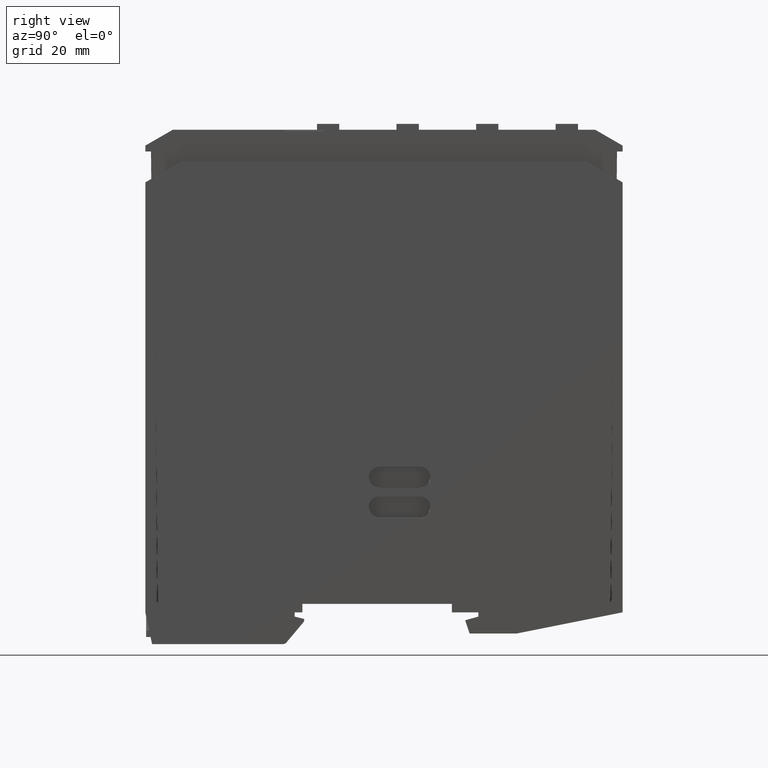
[diagram: clean part render]
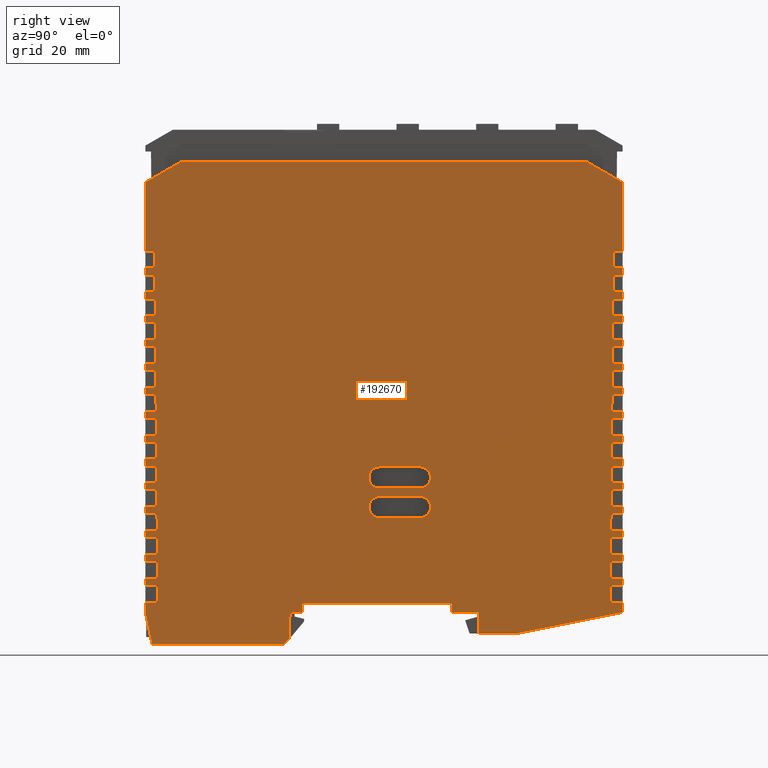
[diagram: same view with one face highlighted and labeled with its STEP entity id]
A machine part, right view. The second image highlights one B-rep face of the part: STEP entity #192670.
In plain terms, the highlighted planar face has unit normal (1, -0, 0).
Its self-contained STEP definition (entity closure, byte-faithful):
#200=CARTESIAN_POINT('',(35.9999999955137,24.6999999540141,
-3.99025656807565));
#210=VERTEX_POINT('',#200);
#240=CARTESIAN_POINT('',(35.9999999902508,-0.30000037049499,
-8.99025663271298));
#250=DIRECTION('',(2.06424506027228E-10,0.980580675692915,
0.196116135128209));
#260=VECTOR('',#250,1.);
#270=LINE('',#240,#260);
#280=CARTESIAN_POINT('',(35.9999999997239,44.6999999540549,
0.00974343172092063));
#290=VERTEX_POINT('',#280);
#300=EDGE_CURVE('',#210,#290,#270,.T.);
#1250=CARTESIAN_POINT('',(35.999999995587,17.4999999540141,
-3.99025656800227));
#1260=VERTEX_POINT('',#1250);
#1290=CARTESIAN_POINT('',(35.9999999957685,-0.300000370444029,
-3.99025656782084));
#1300=DIRECTION('',(-1.01922142602084E-11,1.,-1.0192214248961E-11));
#1310=VECTOR('',#1300,1.);
#1320=LINE('',#1290,#1310);
#1330=EDGE_CURVE('',#1260,#210,#1320,.T.);
#8790=CARTESIAN_POINT('',(36.0000001183176,-0.300000369312157,
107.062302590989));
#8800=DIRECTION('',(5.60588544278916E-10,-0.866025403779342,
0.500000000008828));
#8810=VECTOR('',#8800,1.);
#8820=LINE('',#8790,#8810);
#8830=CARTESIAN_POINT('',(36.0000000891886,44.6999999548812,
81.0815402896713));
#8840=VERTEX_POINT('',#8830);
#8850=CARTESIAN_POINT('',(36.0000000935928,37.8961530466489,
85.0097431337567));
#8860=VERTEX_POINT('',#8850);
#8870=EDGE_CURVE('',#8840,#8860,#8820,.T.);
#13990=CARTESIAN_POINT('',(36.0000000901059,-45.3000000451188,
81.0815406652398));
#14000=VERTEX_POINT('',#13990);
#14030=CARTESIAN_POINT('',(36.0000000483134,-45.3000000455048,
43.209743283621));
#14040=DIRECTION('',(-1.10352365561752E-9,-1.01922142602084E-11,-1.));
#14050=VECTOR('',#14040,1.);
#14060=LINE('',#14030,#14050);
#14070=CARTESIAN_POINT('',(36.0000000757839,-45.3000000452511,
68.1031815370123));
#14080=VERTEX_POINT('',#14070);
#14090=EDGE_CURVE('',#14000,#14080,#14060,.T.);
#14310=CARTESIAN_POINT('',(36.0000000722656,-45.3000000452836,
64.9149332609804));
#14320=VERTEX_POINT('',#14310);
#14350=CARTESIAN_POINT('',(36.0000000708203,-45.3000000452969,
63.6052396379369));
#14360=VERTEX_POINT('',#14350);
#14370=EDGE_CURVE('',#14320,#14360,#14060,.T.);
#14590=CARTESIAN_POINT('',(36.0000000672975,-45.3000000453295,
60.4128751600558));
#14600=VERTEX_POINT('',#14590);
#14630=CARTESIAN_POINT('',(36.0000000658568,-45.3000000453428,
59.1072977388614));
#14640=VERTEX_POINT('',#14630);
#14650=EDGE_CURVE('',#14600,#14640,#14060,.T.);
#14870=CARTESIAN_POINT('',(36.0000000623294,-45.3000000453753,
55.9108170591313));
#14880=VERTEX_POINT('',#14870);
#14910=CARTESIAN_POINT('',(36.0000000608932,-45.3000000453886,
54.609355839786));
#14920=VERTEX_POINT('',#14910);
#14930=EDGE_CURVE('',#14880,#14920,#14060,.T.);
#15150=CARTESIAN_POINT('',(36.0000000573612,-45.3000000454212,
51.4087589582068));
#15160=VERTEX_POINT('',#15150);
#15190=CARTESIAN_POINT('',(36.0000000559296,-45.3000000454345,
50.1114139407105));
#15200=VERTEX_POINT('',#15190);
#15210=EDGE_CURVE('',#15160,#15200,#14060,.T.);
#15430=CARTESIAN_POINT('',(36.0000000523931,-45.3000000454671,
46.9067008572822));
#15440=VERTEX_POINT('',#15430);
#15470=CARTESIAN_POINT('',(36.000000050966,-45.3000000454803,
45.6134720416351));
#15480=VERTEX_POINT('',#15470);
#15490=EDGE_CURVE('',#15440,#15480,#14060,.T.);
#15710=CARTESIAN_POINT('',(36.000000047425,-45.300000045513,
42.4046427563577));
#15720=VERTEX_POINT('',#15710);
#15750=CARTESIAN_POINT('',(36.0000000460024,-45.3000000455261,
41.1155301425596));
#15760=VERTEX_POINT('',#15750);
#15770=EDGE_CURVE('',#15720,#15760,#14060,.T.);
#15990=CARTESIAN_POINT('',(36.0000000424569,-45.3000000455589,
37.9025846554331));
#16000=VERTEX_POINT('',#15990);
#16030=CARTESIAN_POINT('',(36.0000000410388,-45.300000045572,
36.6175882434842));
#16040=VERTEX_POINT('',#16030);
#16050=EDGE_CURVE('',#16000,#16040,#14060,.T.);
#16270=CARTESIAN_POINT('',(36.0000000374892,-45.3000000456048,
33.4009236606617));
#16280=VERTEX_POINT('',#16270);
#16310=CARTESIAN_POINT('',(36.0000000360752,-45.3000000456178,
32.1196463444087));
#16320=VERTEX_POINT('',#16310);
#16330=EDGE_CURVE('',#16280,#16320,#14060,.T.);
#16550=CARTESIAN_POINT('',(36.0000000325206,-45.3000000456507,
28.898468453584));
#16560=VERTEX_POINT('',#16550);
#16590=CARTESIAN_POINT('',(36.0000000311117,-45.3000000456637,
27.6217044453332));
#16600=VERTEX_POINT('',#16590);
#16610=EDGE_CURVE('',#16560,#16600,#14060,.T.);
#16830=CARTESIAN_POINT('',(36.0000000275525,-45.3000000456965,
24.3964103526595));
#16840=VERTEX_POINT('',#16830);
#16870=CARTESIAN_POINT('',(36.0000000261481,-45.3000000457095,
23.1237625462578));
#16880=VERTEX_POINT('',#16870);
#16890=EDGE_CURVE('',#16840,#16880,#14060,.T.);
#17110=CARTESIAN_POINT('',(36.0000000225843,-45.3000000457424,
19.8943522517349));
#17120=VERTEX_POINT('',#17110);
#17150=CARTESIAN_POINT('',(36.0000000211845,-45.3000000457554,
18.6258206471824));
#17160=VERTEX_POINT('',#17150);
#17170=EDGE_CURVE('',#17120,#17160,#14060,.T.);
#17390=CARTESIAN_POINT('',(36.0000000176162,-45.3000000457883,
15.3922941508104));
#17400=VERTEX_POINT('',#17390);
#17430=CARTESIAN_POINT('',(36.0000000162209,-45.3000000458012,
14.1278787481069));
#17440=VERTEX_POINT('',#17430);
#17450=EDGE_CURVE('',#17400,#17440,#14060,.T.);
#17670=CARTESIAN_POINT('',(36.0000000126481,-45.3000000458342,
10.8902360498858));
#17680=VERTEX_POINT('',#17670);
#17710=CARTESIAN_POINT('',(36.0000000112573,-45.3000000458471,
9.62993684903147));
#17720=VERTEX_POINT('',#17710);
#17730=EDGE_CURVE('',#17680,#17720,#14060,.T.);
#17950=CARTESIAN_POINT('',(36.00000000768,-45.3000000458801,
6.38817794896129));
#17960=VERTEX_POINT('',#17950);
#17990=CARTESIAN_POINT('',(36.0000000062937,-45.3000000458929,
5.131994949956));
#18000=VERTEX_POINT('',#17990);
#18010=EDGE_CURVE('',#17960,#18000,#14060,.T.);
#18230=CARTESIAN_POINT('',(36.0000000027118,-45.300000045926,
1.88611984803673));
#18240=VERTEX_POINT('',#18230);
#18270=CARTESIAN_POINT('',(36.0000000006412,-45.3000000459451,
0.00974343263779787));
#18280=VERTEX_POINT('',#18270);
#18290=EDGE_CURVE('',#18240,#18280,#14060,.T.);
#28700=CARTESIAN_POINT('',(36.0000000473961,44.6999999544952,
43.2097432827037));
#28710=DIRECTION('',(-1.10352365561752E-9,-1.01922142602084E-11,-1.));
#28720=VECTOR('',#28710,1.);
#28730=LINE('',#28700,#28720);
#29240=CARTESIAN_POINT('',(36.0000000943714,-38.4961537857228,
85.0097431345345));
#29250=VERTEX_POINT('',#29240);
#29280=CARTESIAN_POINT('',(36.0000001183176,-0.300000369312157,
107.062302590988));
#29290=DIRECTION('',(5.42935111338604E-10,0.866025403789536,
0.499999999991172));
#29300=VECTOR('',#29290,1.);
#29310=LINE('',#29280,#29300);
#29320=EDGE_CURVE('',#14000,#29250,#29310,.T.);
#29520=CARTESIAN_POINT('',(36.0000000939821,-0.300000369536922,
85.0097431341456));
#29530=DIRECTION('',(-1.01922142601962E-11,1.,-1.01812328160025E-11));
#29540=VECTOR('',#29530,1.);
#29550=LINE('',#29520,#29540);
#29560=EDGE_CURVE('',#29250,#8860,#29550,.T.);
#31550=CARTESIAN_POINT('',(36.0000001051277,-0.30000004497582,
95.1097434321792));
#31560=DIRECTION('',(1.,1.0192214248961E-11,-1.10352365561762E-9));
#31570=DIRECTION('',(1.01922142602084E-11,-1.,1.0192214248961E-11));
#31580=AXIS2_PLACEMENT_3D('',#31550,#31560,#31570);
#31590=PLANE('',#31580);
#36440=CARTESIAN_POINT('',(36.0000000017945,44.699999954074,
1.88611984711936));
#36450=VERTEX_POINT('',#36440);
#36460=EDGE_CURVE('',#36450,#290,#28730,.T.);
#36680=CARTESIAN_POINT('',(36.0000000053764,44.6999999541071,
5.13199494903863));
#36690=VERTEX_POINT('',#36680);
#36720=CARTESIAN_POINT('',(36.0000000067627,44.6999999541199,
6.38817794804392));
#36730=VERTEX_POINT('',#36720);
#36740=EDGE_CURVE('',#36730,#36690,#28730,.T.);
#36960=CARTESIAN_POINT('',(36.00000001034,44.699999954153,
9.6299368481141));
#36970=VERTEX_POINT('',#36960);
#37000=CARTESIAN_POINT('',(36.0000000117308,44.6999999541658,
10.8902360489685));
#37010=VERTEX_POINT('',#37000);
#37020=EDGE_CURVE('',#37010,#36970,#28730,.T.);
#37240=CARTESIAN_POINT('',(36.0000000153036,44.6999999541988,
14.1278787471895));
#37250=VERTEX_POINT('',#37240);
#37280=CARTESIAN_POINT('',(36.0000000166989,44.6999999542117,
15.392294149893));
#37290=VERTEX_POINT('',#37280);
#37300=EDGE_CURVE('',#37290,#37250,#28730,.T.);
#37520=CARTESIAN_POINT('',(36.0000000202672,44.6999999542446,
18.625820646265));
#37530=VERTEX_POINT('',#37520);
#37560=CARTESIAN_POINT('',(36.000000021667,44.6999999542576,
19.8943522508175));
#37570=VERTEX_POINT('',#37560);
#37580=EDGE_CURVE('',#37570,#37530,#28730,.T.);
#37800=CARTESIAN_POINT('',(36.0000000252308,44.6999999542905,
23.1237625453404));
#37810=VERTEX_POINT('',#37800);
#37840=CARTESIAN_POINT('',(36.0000000266352,44.6999999543035,
24.3964103517421));
#37850=VERTEX_POINT('',#37840);
#37860=EDGE_CURVE('',#37850,#37810,#28730,.T.);
#38080=CARTESIAN_POINT('',(36.0000000301944,44.6999999543363,
27.6217044444159));
#38090=VERTEX_POINT('',#38080);
#38120=CARTESIAN_POINT('',(36.0000000316033,44.6999999543493,
28.8984684526666));
#38130=VERTEX_POINT('',#38120);
#38140=EDGE_CURVE('',#38130,#38090,#28730,.T.);
#38360=CARTESIAN_POINT('',(36.0000000351579,44.6999999543822,
32.1196463434913));
#38370=VERTEX_POINT('',#38360);
#38400=CARTESIAN_POINT('',(36.0000000365719,44.6999999543952,
33.4009236597443));
#38410=VERTEX_POINT('',#38400);
#38420=EDGE_CURVE('',#38410,#38370,#28730,.T.);
#38640=CARTESIAN_POINT('',(36.0000000401215,44.699999954428,
36.6175882425668));
#38650=VERTEX_POINT('',#38640);
#38680=CARTESIAN_POINT('',(36.0000000415396,44.6999999544411,
37.9025846545157));
#38690=VERTEX_POINT('',#38680);
#38700=EDGE_CURVE('',#38690,#38650,#28730,.T.);
#38920=CARTESIAN_POINT('',(36.0000000450851,44.6999999544739,
41.1155301416423));
#38930=VERTEX_POINT('',#38920);
#38960=CARTESIAN_POINT('',(36.0000000465077,44.699999954487,
42.4046427554403));
#38970=VERTEX_POINT('',#38960);
#38980=EDGE_CURVE('',#38970,#38930,#28730,.T.);
#39200=CARTESIAN_POINT('',(36.0000000500487,44.6999999545197,
45.6134720407177));
#39210=VERTEX_POINT('',#39200);
#39240=CARTESIAN_POINT('',(36.0000000514758,44.6999999545329,
46.9067008563648));
#39250=VERTEX_POINT('',#39240);
#39260=EDGE_CURVE('',#39250,#39210,#28730,.T.);
#39480=CARTESIAN_POINT('',(36.0000000550123,44.6999999545655,
50.1114139397932));
#39490=VERTEX_POINT('',#39480);
#39520=CARTESIAN_POINT('',(36.0000000564439,44.6999999545788,
51.4087589572894));
#39530=VERTEX_POINT('',#39520);
#39540=EDGE_CURVE('',#39530,#39490,#28730,.T.);
#39760=CARTESIAN_POINT('',(36.0000000599759,44.6999999546114,
54.6093558388686));
#39770=VERTEX_POINT('',#39760);
#39800=CARTESIAN_POINT('',(36.0000000614121,44.6999999546247,
55.9108170582139));
#39810=VERTEX_POINT('',#39800);
#39820=EDGE_CURVE('',#39810,#39770,#28730,.T.);
#40040=CARTESIAN_POINT('',(36.0000000649395,44.6999999546572,
59.1072977379441));
#40050=VERTEX_POINT('',#40040);
#40080=CARTESIAN_POINT('',(36.0000000663802,44.6999999546705,
60.4128751591385));
#40090=VERTEX_POINT('',#40080);
#40100=EDGE_CURVE('',#40090,#40050,#28730,.T.);
#40320=CARTESIAN_POINT('',(36.000000069903,44.6999999547031,
63.6052396370195));
#40330=VERTEX_POINT('',#40320);
#40360=CARTESIAN_POINT('',(36.0000000713483,44.6999999547164,
64.914933260063));
#40370=VERTEX_POINT('',#40360);
#40380=EDGE_CURVE('',#40370,#40330,#28730,.T.);
#40600=CARTESIAN_POINT('',(36.0000000748666,44.6999999547489,
68.103181536095));
#40610=VERTEX_POINT('',#40600);
#40640=EDGE_CURVE('',#8840,#40610,#28730,.T.);
#42390=CARTESIAN_POINT('',(36.0000000198677,-1.14565940197907,
17.8403649190574));
#42400=VERTEX_POINT('',#42390);
#42430=CARTESIAN_POINT('',(36.0000000242821,-1.1456594019383,
21.8406695519431));
#42440=CARTESIAN_POINT('',(36.0000000242934,-2.24948934323162,
21.8406695519544));
#42450=CARTESIAN_POINT('',(36.0000000233135,-3.14565940194744,
20.9444312425391));
#42460=CARTESIAN_POINT('',(36.0000000208771,-3.14565940196994,
18.7366032285022));
#42470=CARTESIAN_POINT('',(36.0000000198789,-2.24948934327239,
17.8403649190686));
#42480=CARTESIAN_POINT('',(36.0000000198677,-1.14565940197907,
17.8403649190574));
#42490=B_SPLINE_CURVE_WITH_KNOTS('',3,(#42430,#42440,#42450,#42460,
#42470,#42480),.UNSPECIFIED.,.F.,.F.,(4,2,4),(0.,1.,2.),.UNSPECIFIED.);
#42500=CARTESIAN_POINT('',(36.0000000242821,-1.1456594019383,
21.8406695519431));
#42510=VERTEX_POINT('',#42500);
#42520=EDGE_CURVE('',#42510,#42400,#42490,.T.);
#42770=CARTESIAN_POINT('',(36.0000000242735,-0.300000370180754,
21.8406695519345));
#42780=DIRECTION('',(-1.01922142602083E-11,1.,-1.01921587335821E-11));
#42790=VECTOR('',#42780,1.);
#42800=LINE('',#42770,#42790);
#42810=CARTESIAN_POINT('',(36.0000000242045,6.47434059806169,
21.8406695518655));
#42820=VERTEX_POINT('',#42810);
#42830=EDGE_CURVE('',#42510,#42820,#42800,.T.);
#43130=CARTESIAN_POINT('',(36.00000001979,6.47434059802092,
17.8403649189797));
#43140=CARTESIAN_POINT('',(36.0000000197788,7.57817053931424,
17.8403649189685));
#43150=CARTESIAN_POINT('',(36.0000000207587,8.47434059803006,
18.7366032283838));
#43160=CARTESIAN_POINT('',(36.0000000231951,8.47434059805256,
20.9444312424206));
#43170=CARTESIAN_POINT('',(36.0000000241932,7.57817053935501,
21.8406695518542));
#43180=CARTESIAN_POINT('',(36.0000000242045,6.47434059806169,
21.8406695518655));
#43190=B_SPLINE_CURVE_WITH_KNOTS('',3,(#43130,#43140,#43150,#43160,
#43170,#43180),.UNSPECIFIED.,.F.,.F.,(4,2,4),(0.,1.,2.),.UNSPECIFIED.);
#43200=CARTESIAN_POINT('',(36.00000001979,6.47434059802092,
17.8403649189797));
#43210=VERTEX_POINT('',#43200);
#43220=EDGE_CURVE('',#43210,#42820,#43190,.T.);
#43470=CARTESIAN_POINT('',(36.0000000198591,-0.300000370221526,
17.8403649190488));
#43480=DIRECTION('',(1.01922142602083E-11,-1.,1.01921587335821E-11));
#43490=VECTOR('',#43480,1.);
#43500=LINE('',#43470,#43490);
#43510=EDGE_CURVE('',#43210,#42400,#43500,.T.);
#44270=CARTESIAN_POINT('',(36.0000000304623,-1.14565940188122,
27.4410960379832));
#44280=VERTEX_POINT('',#44270);
#44310=CARTESIAN_POINT('',(36.0000000304537,-0.300000370123674,
27.4410960379746));
#44320=DIRECTION('',(-1.01922142602085E-11,1.,-1.01923167044739E-11));
#44330=VECTOR('',#44320,1.);
#44340=LINE('',#44310,#44330);
#44350=CARTESIAN_POINT('',(36.0000000303847,6.47434059811878,
27.4410960379055));
#44360=VERTEX_POINT('',#44350);
#44370=EDGE_CURVE('',#44280,#44360,#44340,.T.);
#44700=CARTESIAN_POINT('',(36.0000000260479,-1.14565940192199,
23.4407914050974));
#44710=VERTEX_POINT('',#44700);
#44740=CARTESIAN_POINT('',(36.0000000304623,-1.14565940188122,
27.4410960379832));
#44750=CARTESIAN_POINT('',(36.0000000304736,-2.24948934317454,
27.4410960379945));
#44760=CARTESIAN_POINT('',(36.0000000294937,-3.14565940189036,
26.5448577285791));
#44770=CARTESIAN_POINT('',(36.0000000270573,-3.14565940191286,
24.3370297145423));
#44780=CARTESIAN_POINT('',(36.0000000260591,-2.24948934321531,
23.4407914051087));
#44790=CARTESIAN_POINT('',(36.0000000260479,-1.14565940192199,
23.4407914050974));
#44800=B_SPLINE_CURVE_WITH_KNOTS('',3,(#44740,#44750,#44760,#44770,
#44780,#44790),.UNSPECIFIED.,.F.,.F.,(4,2,4),(0.,1.,2.),.UNSPECIFIED.);
#44810=EDGE_CURVE('',#44280,#44710,#44800,.T.);
#45040=CARTESIAN_POINT('',(36.0000000259702,6.474340598078,
23.4407914050198));
#45050=VERTEX_POINT('',#45040);
#45080=CARTESIAN_POINT('',(36.0000000260393,-0.300000370164446,
23.4407914050888));
#45090=DIRECTION('',(1.01922142602083E-11,-1.,1.01921587335821E-11));
#45100=VECTOR('',#45090,1.);
#45110=LINE('',#45080,#45100);
#45120=EDGE_CURVE('',#45050,#44710,#45110,.T.);
#45370=CARTESIAN_POINT('',(36.0000000259702,6.474340598078,
23.4407914050198));
#45380=CARTESIAN_POINT('',(36.000000025959,7.57817053937132,
23.4407914050085));
#45390=CARTESIAN_POINT('',(36.0000000269389,8.47434059808714,
24.3370297144239));
#45400=CARTESIAN_POINT('',(36.0000000293753,8.47434059810964,
26.5448577284607));
#45410=CARTESIAN_POINT('',(36.0000000303734,7.57817053941209,
27.4410960378943));
#45420=CARTESIAN_POINT('',(36.0000000303847,6.47434059811878,
27.4410960379055));
#45430=B_SPLINE_CURVE_WITH_KNOTS('',3,(#45370,#45380,#45390,#45400,
#45410,#45420),.UNSPECIFIED.,.F.,.F.,(4,2,4),(0.,1.,2.),.UNSPECIFIED.);
#45440=EDGE_CURVE('',#45050,#44360,#45430,.T.);
#45760=CARTESIAN_POINT('',(36.0000000748848,42.9179101353211,
68.1031815361131));
#45770=VERTEX_POINT('',#45760);
#45800=CARTESIAN_POINT('',(36.0000000753253,-0.300000369709237,
68.1031815365536));
#45810=DIRECTION('',(-1.01922142602084E-11,1.,-1.0192214248961E-11));
#45820=VECTOR('',#45810,1.);
#45830=LINE('',#45800,#45820);
#45840=EDGE_CURVE('',#45770,#40610,#45830,.T.);
#46140=CARTESIAN_POINT('',(36.0000000713668,42.8900867140996,
64.9149332600815));
#46150=VERTEX_POINT('',#46140);
#46180=CARTESIAN_POINT('',(36.0000000474165,42.7006683905726,
43.2097432827241));
#46190=DIRECTION('',(-1.10339269409855E-9,-0.00872653550856558,
-0.999961923064082));
#46200=VECTOR('',#46190,1.);
#46210=LINE('',#46180,#46200);
#46220=EDGE_CURVE('',#45770,#46150,#46210,.T.);
#46390=CARTESIAN_POINT('',(36.000000071807,-0.300000369741732,
64.9149332605217));
#46400=DIRECTION('',(1.01922142602084E-11,-1.,1.0192214248961E-11));
#46410=VECTOR('',#46400,1.);
#46420=LINE('',#46390,#46410);
#46430=EDGE_CURVE('',#40370,#46150,#46420,.T.);
#47000=CARTESIAN_POINT('',(36.0000000699216,42.8786571909915,
63.6052396370381));
#47010=VERTEX_POINT('',#47000);
#47040=CARTESIAN_POINT('',(36.0000000703617,-0.300000369755081,
63.6052396374782));
#47050=DIRECTION('',(-1.01922142602084E-11,1.,-1.0192214248961E-11));
#47060=VECTOR('',#47050,1.);
#47070=LINE('',#47040,#47060);
#47080=EDGE_CURVE('',#47010,#40330,#47070,.T.);
#47330=CARTESIAN_POINT('',(36.000000066399,42.8507978482206,
60.4128751591573));
#47340=VERTEX_POINT('',#47330);
#47370=EDGE_CURVE('',#47010,#47340,#46210,.T.);
#47540=CARTESIAN_POINT('',(36.0000000668388,-0.300000369787618,
60.4128751595971));
#47550=DIRECTION('',(1.01922142602084E-11,-1.,1.0192214248961E-11));
#47560=VECTOR('',#47550,1.);
#47570=LINE('',#47540,#47560);
#47580=EDGE_CURVE('',#40090,#47340,#47570,.T.);
#48150=CARTESIAN_POINT('',(36.0000000649584,42.8394042466619,
59.107297737963));
#48160=VERTEX_POINT('',#48150);
#48190=CARTESIAN_POINT('',(36.0000000653981,-0.300000369800925,
59.1072977384027));
#48200=DIRECTION('',(-1.01922142602084E-11,1.,-1.0192214248961E-11));
#48210=VECTOR('',#48200,1.);
#48220=LINE('',#48190,#48210);
#48230=EDGE_CURVE('',#48160,#40050,#48220,.T.);
#48480=CARTESIAN_POINT('',(36.0000000614313,42.8115089823416,
55.9108170582332));
#48490=VERTEX_POINT('',#48480);
#48520=EDGE_CURVE('',#48160,#48490,#46210,.T.);
#48690=CARTESIAN_POINT('',(36.0000000618707,-0.300000369833504,
55.9108170586726));
#48700=DIRECTION('',(1.01922142602084E-11,-1.,1.0192214248961E-11));
#48710=VECTOR('',#48700,1.);
#48720=LINE('',#48690,#48710);
#48730=EDGE_CURVE('',#39810,#48490,#48720,.T.);
#49300=CARTESIAN_POINT('',(36.0000000599952,42.8001513023323,
54.609355838888));
#49310=VERTEX_POINT('',#49300);
#49340=CARTESIAN_POINT('',(36.0000000604345,-0.300000369846769,
54.6093558393273));
#49350=DIRECTION('',(-1.01922142602084E-11,1.,-1.0192214248961E-11));
#49360=VECTOR('',#49350,1.);
#49370=LINE('',#49340,#49360);
#49380=EDGE_CURVE('',#49310,#39770,#49370,.T.);
#49630=CARTESIAN_POINT('',(36.0000000564636,42.7722201164627,
51.408758957309));
#49640=VERTEX_POINT('',#49630);
#49670=EDGE_CURVE('',#49310,#49640,#46210,.T.);
#49840=CARTESIAN_POINT('',(36.0000000569026,-0.30000036987939,
51.408758957748));
#49850=DIRECTION('',(1.01922142602084E-11,-1.,1.0192214248961E-11));
#49860=VECTOR('',#49850,1.);
#49870=LINE('',#49840,#49860);
#49880=EDGE_CURVE('',#39530,#49640,#49870,.T.);
#50450=CARTESIAN_POINT('',(36.0000000550321,42.7608983580027,
50.1114139398129));
#50460=VERTEX_POINT('',#50450);
#50490=CARTESIAN_POINT('',(36.0000000554709,-0.300000369892613,
50.1114139402518));
#50500=DIRECTION('',(-1.01922142602084E-11,1.,-1.0192214248961E-11));
#50510=VECTOR('',#50500,1.);
#50520=LINE('',#50490,#50510);
#50530=EDGE_CURVE('',#50460,#39490,#50520,.T.);
#50780=CARTESIAN_POINT('',(36.0000000514959,42.7329312505837,
46.9067008563849));
#50790=VERTEX_POINT('',#50780);
#50820=EDGE_CURVE('',#50460,#50790,#46210,.T.);
#50990=CARTESIAN_POINT('',(36.0000000519345,-0.300000369925276,
46.9067008568235));
#51000=DIRECTION('',(1.01922142602084E-11,-1.,1.0192214248961E-11));
#51010=VECTOR('',#51000,1.);
#51020=LINE('',#50990,#51010);
#51030=EDGE_CURVE('',#39250,#50790,#51020,.T.);
#51600=CARTESIAN_POINT('',(36.0000000500689,42.7216454136732,
45.6134720407379));
#51610=VERTEX_POINT('',#51600);
#51640=CARTESIAN_POINT('',(36.0000000505074,-0.300000369938457,
45.6134720411764));
#51650=DIRECTION('',(-1.01922142602084E-11,1.,-1.0192214248961E-11));
#51660=VECTOR('',#51650,1.);
#51670=LINE('',#51640,#51660);
#51680=EDGE_CURVE('',#51610,#39210,#51670,.T.);
#51930=CARTESIAN_POINT('',(36.0000000465281,42.6936423847047,
42.4046427554607));
#51940=VERTEX_POINT('',#51930);
#51970=EDGE_CURVE('',#51610,#51940,#46210,.T.);
#52140=CARTESIAN_POINT('',(36.0000000469663,-0.300000369971162,
42.4046427558989));
#52150=DIRECTION('',(1.01922142602084E-11,-1.,1.0192214248961E-11));
#52160=VECTOR('',#52150,1.);
#52170=LINE('',#52140,#52160);
#52180=EDGE_CURVE('',#38970,#51940,#52170,.T.);
#52750=CARTESIAN_POINT('',(36.0000000451057,42.6823924693436,
41.1155301416628));
#52760=VERTEX_POINT('',#52750);
#52790=CARTESIAN_POINT('',(36.0000000455438,-0.300000369984301,
41.1155301421009));
#52800=DIRECTION('',(-1.01922142602084E-11,1.,-1.0192214248961E-11));
#52810=VECTOR('',#52800,1.);
#52820=LINE('',#52790,#52810);
#52830=EDGE_CURVE('',#52760,#38930,#52820,.T.);
#53080=CARTESIAN_POINT('',(36.0000000415604,42.6543535188258,
37.9025846545366));
#53090=VERTEX_POINT('',#53080);
#53120=EDGE_CURVE('',#52760,#53090,#46210,.T.);
#53290=CARTESIAN_POINT('',(36.0000000419982,-0.300000370017048,
37.9025846549744));
#53300=DIRECTION('',(1.01922142602084E-11,-1.,1.0192214248961E-11));
#53310=VECTOR('',#53300,1.);
#53320=LINE('',#53290,#53310);
#53330=EDGE_CURVE('',#38690,#53090,#53320,.T.);
#53900=CARTESIAN_POINT('',(36.0000000401425,42.643139525014,
36.6175882425878));
#53910=VERTEX_POINT('',#53900);
#53940=CARTESIAN_POINT('',(36.0000000405802,-0.300000370030145,
36.6175882430255));
#53950=DIRECTION('',(-1.01922142602084E-11,1.,-1.0192214248961E-11));
#53960=VECTOR('',#53950,1.);
#53970=LINE('',#53940,#53960);
#53980=EDGE_CURVE('',#53910,#38650,#53970,.T.);
#54230=CARTESIAN_POINT('',(36.0000000365931,42.6150681184397,
33.4009236597656));
#54240=VERTEX_POINT('',#54230);
#54270=EDGE_CURVE('',#53910,#54240,#46210,.T.);
#54440=CARTESIAN_POINT('',(36.0000000370305,-0.30000037006293,
33.400923660203));
#54450=DIRECTION('',(1.01922142602084E-11,-1.,1.0192214248961E-11));
#54460=VECTOR('',#54450,1.);
#54470=LINE('',#54440,#54460);
#54480=EDGE_CURVE('',#38410,#54240,#54470,.T.);
#55050=CARTESIAN_POINT('',(36.0000000351793,42.6038865806844,
32.1196463435127));
#55060=VERTEX_POINT('',#55050);
#55090=CARTESIAN_POINT('',(36.0000000356166,-0.300000370075989,
32.11964634395));
#55100=DIRECTION('',(-1.01922142602084E-11,1.,-1.0192214248961E-11));
#55110=VECTOR('',#55100,1.);
#55120=LINE('',#55090,#55110);
#55130=EDGE_CURVE('',#55060,#38370,#55120,.T.);
#55380=CARTESIAN_POINT('',(36.000000031625,42.5757757870678,
28.8984684526883));
#55390=VERTEX_POINT('',#55380);
#55420=EDGE_CURVE('',#55060,#55390,#46210,.T.);
#55590=CARTESIAN_POINT('',(36.000000032062,-0.30000037010882,
28.8984684531253));
#55600=DIRECTION('',(1.01922142602084E-11,-1.,1.0192214248961E-11));
#55610=VECTOR('',#55600,1.);
#55620=LINE('',#55590,#55610);
#55630=EDGE_CURVE('',#38130,#55390,#55620,.T.);
#56200=CARTESIAN_POINT('',(36.0000000302161,42.5646336363548,
27.6217044444376));
#56210=VERTEX_POINT('',#56200);
#56240=CARTESIAN_POINT('',(36.000000030653,-0.300000370121833,
27.6217044448745));
#56250=DIRECTION('',(-1.01922142602084E-11,1.,-1.0192214248961E-11));
#56260=VECTOR('',#56250,1.);
#56270=LINE('',#56240,#56260);
#56280=EDGE_CURVE('',#56210,#38090,#56270,.T.);
#56530=CARTESIAN_POINT('',(36.0000000266572,42.5364869211888,
24.3964103517641));
#56540=VERTEX_POINT('',#56530);
#56570=EDGE_CURVE('',#56210,#56540,#46210,.T.);
#56740=CARTESIAN_POINT('',(36.0000000270938,-0.300000370154706,
24.3964103522007));
#56750=DIRECTION('',(1.01922142602084E-11,-1.,1.0192214248961E-11));
#56760=VECTOR('',#56750,1.);
#56770=LINE('',#56740,#56760);
#56780=EDGE_CURVE('',#37850,#56540,#56770,.T.);
#57350=CARTESIAN_POINT('',(36.0000000252529,42.5253806920252,
23.1237625453626));
#57360=VERTEX_POINT('',#57350);
#57390=CARTESIAN_POINT('',(36.0000000256894,-0.300000370167677,
23.1237625457991));
#57400=DIRECTION('',(-1.01922142602084E-11,1.,-1.0192214248961E-11));
#57410=VECTOR('',#57400,1.);
#57420=LINE('',#57390,#57410);
#57430=EDGE_CURVE('',#57360,#37810,#57420,.T.);
#57680=CARTESIAN_POINT('',(36.0000000216895,42.4971980553099,
19.89435225084));
#57690=VERTEX_POINT('',#57680);
#57720=EDGE_CURVE('',#57360,#57690,#46210,.T.);
#57890=CARTESIAN_POINT('',(36.0000000221257,-0.300000370200592,
19.8943522512762));
#57900=DIRECTION('',(1.01922142602084E-11,-1.,1.0192214248961E-11));
#57910=VECTOR('',#57900,1.);
#57920=LINE('',#57890,#57910);
#57930=EDGE_CURVE('',#37570,#57690,#57920,.T.);
#58500=CARTESIAN_POINT('',(36.0000000202898,42.4861277476956,
18.6258206462875));
#58510=VERTEX_POINT('',#58500);
#58540=CARTESIAN_POINT('',(36.0000000207258,-0.300000370213521,
18.6258206467236));
#58550=DIRECTION('',(-1.01922142602084E-11,1.,-1.0192214248961E-11));
#58560=VECTOR('',#58550,1.);
#58570=LINE('',#58540,#58560);
#58580=EDGE_CURVE('',#58510,#37530,#58570,.T.);
#58830=CARTESIAN_POINT('',(36.0000000167218,42.4579091894309,
15.3922941499159));
#58840=VERTEX_POINT('',#58830);
#58870=EDGE_CURVE('',#58510,#58840,#46210,.T.);
#59040=CARTESIAN_POINT('',(36.0000000171576,-0.300000370246478,
15.3922941503517));
#59050=DIRECTION('',(1.01922142602084E-11,-1.,1.0192214248961E-11));
#59060=VECTOR('',#59050,1.);
#59070=LINE('',#59040,#59060);
#59080=EDGE_CURVE('',#37290,#58840,#59070,.T.);
#59650=CARTESIAN_POINT('',(36.0000000153266,42.446874803366,
14.1278787472125));
#59660=VERTEX_POINT('',#59650);
#59690=CARTESIAN_POINT('',(36.0000000157623,-0.300000370259365,
14.1278787476482));
#59700=DIRECTION('',(-1.01922142602084E-11,1.,-1.0192214248961E-11));
#59710=VECTOR('',#59700,1.);
#59720=LINE('',#59690,#59710);
#59730=EDGE_CURVE('',#59660,#37250,#59720,.T.);
#59980=CARTESIAN_POINT('',(36.000000011754,42.4186203235519,
10.8902360489917));
#59990=VERTEX_POINT('',#59980);
#60020=EDGE_CURVE('',#59660,#59990,#46210,.T.);
#60190=CARTESIAN_POINT('',(36.0000000121894,-0.300000370292364,
10.8902360494271));
#60200=DIRECTION('',(1.01922142602084E-11,-1.,1.0192214248961E-11));
#60210=VECTOR('',#60200,1.);
#60220=LINE('',#60190,#60210);
#60230=EDGE_CURVE('',#37010,#59990,#60220,.T.);
#60800=CARTESIAN_POINT('',(36.0000000103634,42.4076218590364,
9.62993684813744));
#60810=VERTEX_POINT('',#60800);
#60840=CARTESIAN_POINT('',(36.0000000107987,-0.300000370305209,
9.62993684857275));
#60850=DIRECTION('',(-1.01922142602084E-11,1.,-1.0192214248961E-11));
#60860=VECTOR('',#60850,1.);
#60870=LINE('',#60840,#60860);
#60880=EDGE_CURVE('',#60810,#36970,#60870,.T.);
#61130=CARTESIAN_POINT('',(36.0000000067863,42.379331457673,
6.38817794806757));
#61140=VERTEX_POINT('',#61130);
#61170=EDGE_CURVE('',#60810,#61140,#46210,.T.);
#61340=CARTESIAN_POINT('',(36.0000000072213,-0.30000037033825,
6.38817794850257));
#61350=DIRECTION('',(1.01922142602084E-11,-1.,1.0192214248961E-11));
#61360=VECTOR('',#61350,1.);
#61370=LINE('',#61340,#61360);
#61380=EDGE_CURVE('',#36730,#61140,#61370,.T.);
#76820=CARTESIAN_POINT('',(36.0000000022532,-0.300000370384135,
1.88611984757801));
#76830=DIRECTION('',(1.01922142602084E-11,-1.,1.0192214248961E-11));
#76840=VECTOR('',#76830,1.);
#76850=LINE('',#76820,#76840);
#76860=CARTESIAN_POINT('',(36.0000000018186,42.340042591794,
1.88611984714341));
#76870=VERTEX_POINT('',#76860);
#76880=EDGE_CURVE('',#36450,#76870,#76850,.T.);
#77190=CARTESIAN_POINT('',(36.0000000054002,42.3683689147068,
5.13199494906238));
#77200=VERTEX_POINT('',#77190);
#77320=EDGE_CURVE('',#77200,#76870,#46210,.T.);
#77570=CARTESIAN_POINT('',(36.0000000058351,-0.300000370351053,
5.13199494949728));
#77580=DIRECTION('',(-1.01922142602084E-11,1.,-1.0192214248961E-11));
#77590=VECTOR('',#77580,1.);
#77600=LINE('',#77570,#77590);
#77610=EDGE_CURVE('',#77200,#36690,#77600,.T.);
#93030=CARTESIAN_POINT('',(36.0000000753253,-0.300000369709237,
68.1031815365537));
#93040=DIRECTION('',(1.01922142602084E-11,-1.,1.0192214248961E-11));
#93050=VECTOR('',#93040,1.);
#93060=LINE('',#93030,#93050);
#93070=CARTESIAN_POINT('',(36.0000000757658,-43.5179102258233,
68.1031815369942));
#93080=VERTEX_POINT('',#93070);
#93090=EDGE_CURVE('',#93080,#14080,#93060,.T.);
#93410=CARTESIAN_POINT('',(36.0000000722472,-43.4900868046667,
64.9149332609619));
#93420=VERTEX_POINT('',#93410);
#93520=CARTESIAN_POINT('',(36.0000000482931,-43.3006684815822,
43.2097432836006));
#93530=DIRECTION('',(1.10357057953765E-9,-0.00872653548818193,
0.99996192306426));
#93540=VECTOR('',#93530,1.);
#93550=LINE('',#93520,#93540);
#93560=EDGE_CURVE('',#93420,#93080,#93550,.T.);
#93800=CARTESIAN_POINT('',(36.000000071807,-0.300000369741732,
64.9149332605217));
#93810=DIRECTION('',(-1.01922142602084E-11,1.,-1.0192214248961E-11));
#93820=VECTOR('',#93810,1.);
#93830=LINE('',#93800,#93820);
#93840=EDGE_CURVE('',#14320,#93420,#93830,.T.);
#94330=CARTESIAN_POINT('',(36.0000000026878,-42.940042683646,
1.88611984801267));
#94340=VERTEX_POINT('',#94330);
#94370=CARTESIAN_POINT('',(36.0000000022532,-0.300000370384135,
1.88611984757808));
#94380=DIRECTION('',(-1.01922142602084E-11,1.,-1.0192214248961E-11));
#94390=VECTOR('',#94380,1.);
#94400=LINE('',#94370,#94390);
#94410=EDGE_CURVE('',#18240,#94340,#94400,.T.);
#94910=CARTESIAN_POINT('',(36.00000000627,-42.9683690064926,
5.13199494993223));
#94920=VERTEX_POINT('',#94910);
#94950=EDGE_CURVE('',#94340,#94920,#93550,.T.);
#95130=CARTESIAN_POINT('',(36.0000000058351,-0.300000370351053,
5.13199494949735));
#95140=DIRECTION('',(1.01922142602084E-11,-1.,1.0192214248961E-11));
#95150=VECTOR('',#95140,1.);
#95160=LINE('',#95130,#95150);
#95170=EDGE_CURVE('',#94920,#18000,#95160,.T.);
#95480=CARTESIAN_POINT('',(36.0000000076563,-42.9793315494332,
6.38817794893763));
#95490=VERTEX_POINT('',#95480);
#95520=CARTESIAN_POINT('',(36.0000000072213,-0.30000037033825,
6.38817794850264));
#95530=DIRECTION('',(-1.01922142602084E-11,1.,-1.0192214248961E-11));
#95540=VECTOR('',#95530,1.);
#95550=LINE('',#95520,#95540);
#95560=EDGE_CURVE('',#17960,#95490,#95550,.T.);
#96060=CARTESIAN_POINT('',(36.000000011234,-43.0076219507305,
9.6299368490081));
#96070=VERTEX_POINT('',#96060);
#96100=EDGE_CURVE('',#95490,#96070,#93550,.T.);
#96280=CARTESIAN_POINT('',(36.0000000107987,-0.300000370305209,
9.62993684857282));
#96290=DIRECTION('',(1.01922142602084E-11,-1.,1.0192214248961E-11));
#96300=VECTOR('',#96290,1.);
#96310=LINE('',#96280,#96300);
#96320=EDGE_CURVE('',#96070,#17720,#96310,.T.);
#96630=CARTESIAN_POINT('',(36.0000000126248,-43.0186204152203,
10.8902360498626));
#96640=VERTEX_POINT('',#96630);
#96670=CARTESIAN_POINT('',(36.0000000121894,-0.300000370292364,
10.8902360494272));
#96680=DIRECTION('',(-1.01922142602084E-11,1.,-1.0192214248961E-11));
#96690=VECTOR('',#96680,1.);
#96700=LINE('',#96670,#96690);
#96710=EDGE_CURVE('',#17680,#96640,#96700,.T.);
#97210=CARTESIAN_POINT('',(36.0000000161979,-43.0468748949684,
14.1278787480839));
#97220=VERTEX_POINT('',#97210);
#97250=EDGE_CURVE('',#96640,#97220,#93550,.T.);
#97430=CARTESIAN_POINT('',(36.0000000157623,-0.300000370259365,
14.1278787476483));
#97440=DIRECTION('',(1.01922142602084E-11,-1.,1.0192214248961E-11));
#97450=VECTOR('',#97440,1.);
#97460=LINE('',#97430,#97450);
#97470=EDGE_CURVE('',#97220,#17440,#97460,.T.);
#97780=CARTESIAN_POINT('',(36.0000000175934,-43.0579092810075,
15.3922941507875));
#97790=VERTEX_POINT('',#97780);
#97820=CARTESIAN_POINT('',(36.0000000171576,-0.300000370246478,
15.3922941503517));
#97830=DIRECTION('',(-1.01922142602084E-11,1.,-1.0192214248961E-11));
#97840=VECTOR('',#97830,1.);
#97850=LINE('',#97820,#97840);
#97860=EDGE_CURVE('',#17400,#97790,#97850,.T.);
#98360=CARTESIAN_POINT('',(36.0000000211619,-43.0861278392063,
18.6258206471598));
#98370=VERTEX_POINT('',#98360);
#98400=EDGE_CURVE('',#97790,#98370,#93550,.T.);
#98580=CARTESIAN_POINT('',(36.0000000207258,-0.300000370213521,
18.6258206467237));
#98590=DIRECTION('',(1.01922142602084E-11,-1.,1.0192214248961E-11));
#98600=VECTOR('',#98590,1.);
#98610=LINE('',#98580,#98600);
#98620=EDGE_CURVE('',#98370,#17160,#98610,.T.);
#98930=CARTESIAN_POINT('',(36.0000000225619,-43.0971981467947,
19.8943522517125));
#98940=VERTEX_POINT('',#98930);
#98970=CARTESIAN_POINT('',(36.0000000221257,-0.300000370200592,
19.8943522512763));
#98980=DIRECTION('',(-1.01922142602084E-11,1.,-1.0192214248961E-11));
#98990=VECTOR('',#98980,1.);
#99000=LINE('',#98970,#98990);
#99010=EDGE_CURVE('',#17120,#98940,#99000,.T.);
#99510=CARTESIAN_POINT('',(36.0000000261259,-43.1253807834442,
23.1237625462356));
#99520=VERTEX_POINT('',#99510);
#99550=EDGE_CURVE('',#98940,#99520,#93550,.T.);
#99730=CARTESIAN_POINT('',(36.0000000256894,-0.300000370167677,
23.1237625457991));
#99740=DIRECTION('',(1.01922142602084E-11,-1.,1.0192214248961E-11));
#99750=VECTOR('',#99740,1.);
#99760=LINE('',#99730,#99750);
#99770=EDGE_CURVE('',#99520,#16880,#99760,.T.);
#100080=CARTESIAN_POINT('',(36.0000000275304,-43.1364870125819,
24.3964103526374));
#100090=VERTEX_POINT('',#100080);
#100120=CARTESIAN_POINT('',(36.0000000270938,-0.300000370154706,
24.3964103522008));
#100130=DIRECTION('',(-1.01922142602084E-11,1.,-1.0192214248961E-11));
#100140=VECTOR('',#100130,1.);
#100150=LINE('',#100120,#100140);
#100160=EDGE_CURVE('',#16840,#100090,#100150,.T.);
#100660=CARTESIAN_POINT('',(36.0000000310899,-43.1646337276821,
27.6217044453115));
#100670=VERTEX_POINT('',#100660);
#100700=EDGE_CURVE('',#100090,#100670,#93550,.T.);
#100880=CARTESIAN_POINT('',(36.000000030653,-0.300000370121833,
27.6217044448746));
#100890=DIRECTION('',(1.01922142602084E-11,-1.,1.0192214248961E-11));
#100900=VECTOR('',#100890,1.);
#100910=LINE('',#100880,#100900);
#100920=EDGE_CURVE('',#100670,#16600,#100910,.T.);
#101230=CARTESIAN_POINT('',(36.000000032499,-43.1757758783691,
28.8984684535624));
#101240=VERTEX_POINT('',#101230);
#101270=CARTESIAN_POINT('',(36.000000032062,-0.30000037010882,
28.8984684531254));
#101280=DIRECTION('',(-1.01922142602084E-11,1.,-1.0192214248961E-11));
#101290=VECTOR('',#101280,1.);
#101300=LINE('',#101270,#101290);
#101310=EDGE_CURVE('',#16560,#101240,#101300,.T.);
#101810=CARTESIAN_POINT('',(36.0000000360539,-43.20388667192,
32.1196463443873));
#101820=VERTEX_POINT('',#101810);
#101850=EDGE_CURVE('',#101240,#101820,#93550,.T.);
#102030=CARTESIAN_POINT('',(36.0000000356166,-0.300000370075989,
32.1196463439501));
#102040=DIRECTION('',(1.01922142602084E-11,-1.,1.0192214248961E-11));
#102050=VECTOR('',#102040,1.);
#102060=LINE('',#102030,#102050);
#102070=EDGE_CURVE('',#101820,#16320,#102060,.T.);
#102380=CARTESIAN_POINT('',(36.0000000374679,-43.2150682096492,
33.4009236606404));
#102390=VERTEX_POINT('',#102380);
#102420=CARTESIAN_POINT('',(36.0000000370305,-0.30000037006293,
33.400923660203));
#102430=DIRECTION('',(-1.01922142602084E-11,1.,-1.0192214248961E-11));
#102440=VECTOR('',#102430,1.);
#102450=LINE('',#102420,#102440);
#102460=EDGE_CURVE('',#16280,#102390,#102450,.T.);
#102960=CARTESIAN_POINT('',(36.0000000410179,-43.243139616158,
36.6175882434632));
#102970=VERTEX_POINT('',#102960);
#103000=EDGE_CURVE('',#102390,#102970,#93550,.T.);
#103180=CARTESIAN_POINT('',(36.0000000405802,-0.300000370030145,
36.6175882430255));
#103190=DIRECTION('',(1.01922142602084E-11,-1.,1.0192214248961E-11));
#103200=VECTOR('',#103190,1.);
#103210=LINE('',#103180,#103200);
#103220=EDGE_CURVE('',#102970,#16040,#103210,.T.);
#103530=CARTESIAN_POINT('',(36.000000042436,-43.2543536099435,
37.9025846554123));
#103540=VERTEX_POINT('',#103530);
#103570=CARTESIAN_POINT('',(36.0000000419982,-0.300000370017048,
37.9025846549745));
#103580=DIRECTION('',(-1.01922142602084E-11,1.,-1.0192214248961E-11));
#103590=VECTOR('',#103580,1.);
#103600=LINE('',#103570,#103590);
#103610=EDGE_CURVE('',#16000,#103540,#103600,.T.);
#104110=CARTESIAN_POINT('',(36.0000000459819,-43.2823925603958,
41.1155301425391));
#104120=VERTEX_POINT('',#104110);
#104150=EDGE_CURVE('',#103540,#104120,#93550,.T.);
#104330=CARTESIAN_POINT('',(36.0000000455438,-0.300000369984301,
41.115530142101));
#104340=DIRECTION('',(1.01922142602084E-11,-1.,1.0192214248961E-11));
#104350=VECTOR('',#104340,1.);
#104360=LINE('',#104330,#104350);
#104370=EDGE_CURVE('',#104120,#15760,#104360,.T.);
#104680=CARTESIAN_POINT('',(36.0000000474045,-43.2936424757307,
42.4046427563372));
#104690=VERTEX_POINT('',#104680);
#104720=CARTESIAN_POINT('',(36.0000000469663,-0.300000369971162,
42.404642755899));
#104730=DIRECTION('',(-1.01922142602084E-11,1.,-1.0192214248961E-11));
#104740=VECTOR('',#104730,1.);
#104750=LINE('',#104720,#104740);
#104760=EDGE_CURVE('',#15720,#104690,#104750,.T.);
#105260=CARTESIAN_POINT('',(36.0000000509458,-43.3216455046338,
45.6134720416149));
#105270=VERTEX_POINT('',#105260);
#105300=EDGE_CURVE('',#104690,#105270,#93550,.T.);
#105480=CARTESIAN_POINT('',(36.0000000505074,-0.300000369938457,
45.6134720411764));
#105490=DIRECTION('',(1.01922142602084E-11,-1.,1.0192214248961E-11));
#105500=VECTOR('',#105490,1.);
#105510=LINE('',#105480,#105500);
#105520=EDGE_CURVE('',#105270,#15480,#105510,.T.);
#105830=CARTESIAN_POINT('',(36.0000000523731,-43.3329313415179,
46.9067008572622));
#105840=VERTEX_POINT('',#105830);
#105870=CARTESIAN_POINT('',(36.0000000519345,-0.300000369925276,
46.9067008568236));
#105880=DIRECTION('',(-1.01922142602084E-11,1.,-1.0192214248961E-11));
#105890=VECTOR('',#105880,1.);
#105900=LINE('',#105870,#105890);
#105910=EDGE_CURVE('',#15440,#105840,#105900,.T.);
#106410=CARTESIAN_POINT('',(36.0000000559098,-43.3608984488717,
50.1114139406908));
#106420=VERTEX_POINT('',#106410);
#106450=EDGE_CURVE('',#105840,#106420,#93550,.T.);
#106630=CARTESIAN_POINT('',(36.0000000554709,-0.300000369892613,
50.1114139402519));
#106640=DIRECTION('',(1.01922142602084E-11,-1.,1.0192214248961E-11));
#106650=VECTOR('',#106640,1.);
#106660=LINE('',#106630,#106650);
#106670=EDGE_CURVE('',#106420,#15200,#106660,.T.);
#106980=CARTESIAN_POINT('',(36.0000000573416,-43.3722202073051,
51.4087589581871));
#106990=VERTEX_POINT('',#106980);
#107020=CARTESIAN_POINT('',(36.0000000569026,-0.30000036987939,
51.4087589577481));
#107030=DIRECTION('',(-1.01922142602084E-11,1.,-1.0192214248961E-11));
#107040=VECTOR('',#107030,1.);
#107050=LINE('',#107020,#107040);
#107060=EDGE_CURVE('',#15160,#106990,#107050,.T.);
#107560=CARTESIAN_POINT('',(36.0000000608738,-43.4001513931096,
54.6093558397666));
#107570=VERTEX_POINT('',#107560);
#107600=EDGE_CURVE('',#106990,#107570,#93550,.T.);
#107780=CARTESIAN_POINT('',(36.0000000604345,-0.300000369846769,
54.6093558393273));
#107790=DIRECTION('',(1.01922142602084E-11,-1.,1.0192214248961E-11));
#107800=VECTOR('',#107790,1.);
#107810=LINE('',#107780,#107800);
#107820=EDGE_CURVE('',#107570,#14920,#107810,.T.);
#108130=CARTESIAN_POINT('',(36.0000000623101,-43.4115090730923,
55.9108170591121));
#108140=VERTEX_POINT('',#108130);
#108170=CARTESIAN_POINT('',(36.0000000618707,-0.300000369833504,
55.9108170586726));
#108180=DIRECTION('',(-1.01922142602084E-11,1.,-1.0192214248961E-11));
#108190=VECTOR('',#108180,1.);
#108200=LINE('',#108170,#108190);
#108210=EDGE_CURVE('',#14880,#108140,#108200,.T.);
#108710=CARTESIAN_POINT('',(36.0000000658378,-43.4394043373475,
59.1072977388425));
#108720=VERTEX_POINT('',#108710);
#108750=EDGE_CURVE('',#108140,#108720,#93550,.T.);
#108930=CARTESIAN_POINT('',(36.0000000653981,-0.300000369800925,
59.1072977384028));
#108940=DIRECTION('',(1.01922142602084E-11,-1.,1.0192214248961E-11));
#108950=VECTOR('',#108940,1.);
#108960=LINE('',#108930,#108950);
#108970=EDGE_CURVE('',#108720,#14640,#108960,.T.);
#109280=CARTESIAN_POINT('',(36.0000000672786,-43.4507979388795,
60.412875160037));
#109290=VERTEX_POINT('',#109280);
#109320=CARTESIAN_POINT('',(36.0000000668388,-0.300000369787618,
60.4128751595972));
#109330=DIRECTION('',(-1.01922142602084E-11,1.,-1.0192214248961E-11));
#109340=VECTOR('',#109330,1.);
#109350=LINE('',#109320,#109340);
#109360=EDGE_CURVE('',#14600,#109290,#109350,.T.);
#109860=CARTESIAN_POINT('',(36.0000000708018,-43.4786572815853,
63.6052396379183));
#109870=VERTEX_POINT('',#109860);
#109900=EDGE_CURVE('',#109290,#109870,#93550,.T.);
#110080=CARTESIAN_POINT('',(36.0000000703617,-0.300000369755081,
63.6052396374782));
#110090=DIRECTION('',(1.01922142602084E-11,-1.,1.0192214248961E-11));
#110100=VECTOR('',#110090,1.);
#110110=LINE('',#110080,#110100);
#110120=EDGE_CURVE('',#109870,#14360,#110110,.T.);
#173550=CARTESIAN_POINT('',(36.0000000000011,17.4999999540549,
0.00974343199773386));
#173560=VERTEX_POINT('',#173550);
#173590=CARTESIAN_POINT('',(36.0000000476734,17.4999999544952,
43.2097432829809));
#173600=DIRECTION('',(1.10352365561752E-9,1.01922142602084E-11,1.));
#173610=VECTOR('',#173600,1.);
#173620=LINE('',#173590,#173610);
#173630=EDGE_CURVE('',#1260,#173560,#173620,.T.);
#173930=CARTESIAN_POINT('',(36.0000000000521,12.4999999540549,
0.00974343204869399));
#173940=VERTEX_POINT('',#173930);
#173970=CARTESIAN_POINT('',(36.0000000001826,-0.30000037040326,
0.00974343217915674));
#173980=DIRECTION('',(1.01922142602084E-11,-1.,1.0192214248961E-11));
#173990=VECTOR('',#173980,1.);
#174000=LINE('',#173970,#173990);
#174010=EDGE_CURVE('',#173560,#173940,#174000,.T.);
#174310=CARTESIAN_POINT('',(36.0000000018177,12.4999999540712,
1.60974343204869));
#174320=VERTEX_POINT('',#174310);
#174350=CARTESIAN_POINT('',(36.0000000477243,12.4999999544952,
43.2097432830319));
#174360=DIRECTION('',(1.10352365561752E-9,1.01922142602084E-11,1.));
#174370=VECTOR('',#174360,1.);
#174380=LINE('',#174350,#174370);
#174390=EDGE_CURVE('',#173940,#174320,#174380,.T.);
#175210=CARTESIAN_POINT('',(36.0000000021052,-15.7000000459288,
1.60974343233611));
#175220=VERTEX_POINT('',#175210);
#175250=CARTESIAN_POINT('',(36.0000000019482,-0.300000370386952,
1.60974343217915));
#175260=DIRECTION('',(1.01922142602084E-11,-1.,1.0192214248961E-11));
#175270=VECTOR('',#175260,1.);
#175280=LINE('',#175250,#175270);
#175290=EDGE_CURVE('',#174320,#175220,#175280,.T.);
#175590=CARTESIAN_POINT('',(36.0000000003395,-15.7000000459451,
0.00974343233611563));
#175600=VERTEX_POINT('',#175590);
#175630=CARTESIAN_POINT('',(36.0000000480117,-15.7000000455048,
43.2097432833193));
#175640=DIRECTION('',(-1.10352365561752E-9,-1.01922142602084E-11,-1.));
#175650=VECTOR('',#175640,1.);
#175660=LINE('',#175630,#175650);
#175670=EDGE_CURVE('',#175220,#175600,#175660,.T.);
#176400=CARTESIAN_POINT('',(36.0000000003631,-18.0136557317407,
0.00974343235970565));
#176410=VERTEX_POINT('',#176400);
#176440=CARTESIAN_POINT('',(36.0000000001826,-0.30000037040326,
0.00974343217915674));
#176450=DIRECTION('',(1.01922142602084E-11,-1.,1.0192214248961E-11));
#176460=VECTOR('',#176450,1.);
#176470=LINE('',#176440,#176460);
#176480=EDGE_CURVE('',#175600,#176410,#176470,.T.);
#176690=CARTESIAN_POINT('',(35.9999999948466,-18.1882808514035,
-4.99086572240329));
#176700=VERTEX_POINT('',#176690);
#176750=CARTESIAN_POINT('',(36.0000000480199,-16.5050784944609,
43.2097432833275));
#176760=DIRECTION('',(-1.10249571567476E-9,-0.03489949671268,
-0.99939082701874));
#176770=VECTOR('',#176760,1.);
#176780=LINE('',#176750,#176770);
#176790=EDGE_CURVE('',#176410,#176700,#176780,.T.);
#178060=CARTESIAN_POINT('',(36.0000000484066,-54.4403449472055,
43.2097432837142));
#178070=DIRECTION('',(1.08173229201383E-9,-0.206999416788451,
0.978341066013914));
#178080=VECTOR('',#178070,1.);
#178090=LINE('',#178060,#178080);
#178100=CARTESIAN_POINT('',(35.9999999940071,-44.0305076941687,
-5.99025656737513));
#178110=VERTEX_POINT('',#178100);
#178120=EDGE_CURVE('',#178110,#18280,#178090,.T.);
#190090=CARTESIAN_POINT('',(35.9999999937543,-19.2231803669796,
-5.99025656762797));
#190100=VERTEX_POINT('',#190090);
#190130=CARTESIAN_POINT('',(36.0000000137271,-0.300000370278162,
12.2836459384657));
#190140=DIRECTION('',(-7.59240279003233E-10,-0.719339800345768,
-0.694658370451628));
#190150=VECTOR('',#190140,1.);
#190160=LINE('',#190130,#190150);
#190170=EDGE_CURVE('',#176700,#190100,#190160,.T.);
#190670=CARTESIAN_POINT('',(35.9999999935614,-0.300000370464413,
-5.99025656782084));
#190680=DIRECTION('',(-1.01922142602084E-11,1.,-1.0192214248961E-11));
#190690=VECTOR('',#190680,1.);
#190700=LINE('',#190670,#190690);
#190710=EDGE_CURVE('',#178110,#190100,#190700,.T.);
#191160=ORIENTED_EDGE('',*,*,#43220,.F.);
#191170=ORIENTED_EDGE('',*,*,#42830,.T.);
#191180=ORIENTED_EDGE('',*,*,#42520,.F.);
#191190=ORIENTED_EDGE('',*,*,#43510,.T.);
#191200=EDGE_LOOP('',(#191190,#191180,#191170,#191160));
#191210=FACE_BOUND('',#191200,.T.);
#191220=ORIENTED_EDGE('',*,*,#44370,.T.);
#191230=ORIENTED_EDGE('',*,*,#44810,.F.);
#191240=ORIENTED_EDGE('',*,*,#45120,.T.);
#191250=ORIENTED_EDGE('',*,*,#45440,.F.);
#191260=EDGE_LOOP('',(#191250,#191240,#191230,#191220));
#191270=FACE_BOUND('',#191260,.T.);
#191280=ORIENTED_EDGE('',*,*,#18290,.T.);
#191290=ORIENTED_EDGE('',*,*,#94410,.F.);
#191300=ORIENTED_EDGE('',*,*,#94950,.F.);
#191310=ORIENTED_EDGE('',*,*,#95170,.F.);
#191320=ORIENTED_EDGE('',*,*,#18010,.T.);
#191330=ORIENTED_EDGE('',*,*,#95560,.F.);
#191340=ORIENTED_EDGE('',*,*,#96100,.F.);
#191350=ORIENTED_EDGE('',*,*,#96320,.F.);
#191360=ORIENTED_EDGE('',*,*,#17730,.T.);
#191370=ORIENTED_EDGE('',*,*,#96710,.F.);
#191380=ORIENTED_EDGE('',*,*,#97250,.F.);
#191390=ORIENTED_EDGE('',*,*,#97470,.F.);
#191400=ORIENTED_EDGE('',*,*,#17450,.T.);
#191410=ORIENTED_EDGE('',*,*,#97860,.F.);
#191420=ORIENTED_EDGE('',*,*,#98400,.F.);
#191430=ORIENTED_EDGE('',*,*,#98620,.F.);
#191440=ORIENTED_EDGE('',*,*,#17170,.T.);
#191450=ORIENTED_EDGE('',*,*,#99010,.F.);
#191460=ORIENTED_EDGE('',*,*,#99550,.F.);
#191470=ORIENTED_EDGE('',*,*,#99770,.F.);
#191480=ORIENTED_EDGE('',*,*,#16890,.T.);
#191490=ORIENTED_EDGE('',*,*,#100160,.F.);
#191500=ORIENTED_EDGE('',*,*,#100700,.F.);
#191510=ORIENTED_EDGE('',*,*,#100920,.F.);
#191520=ORIENTED_EDGE('',*,*,#16610,.T.);
#191530=ORIENTED_EDGE('',*,*,#101310,.F.);
#191540=ORIENTED_EDGE('',*,*,#101850,.F.);
#191550=ORIENTED_EDGE('',*,*,#102070,.F.);
#191560=ORIENTED_EDGE('',*,*,#16330,.T.);
#191570=ORIENTED_EDGE('',*,*,#102460,.F.);
#191580=ORIENTED_EDGE('',*,*,#103000,.F.);
#191590=ORIENTED_EDGE('',*,*,#103220,.F.);
#191600=ORIENTED_EDGE('',*,*,#16050,.T.);
#191610=ORIENTED_EDGE('',*,*,#103610,.F.);
#191620=ORIENTED_EDGE('',*,*,#104150,.F.);
#191630=ORIENTED_EDGE('',*,*,#104370,.F.);
#191640=ORIENTED_EDGE('',*,*,#15770,.T.);
#191650=ORIENTED_EDGE('',*,*,#104760,.F.);
#191660=ORIENTED_EDGE('',*,*,#105300,.F.);
#191670=ORIENTED_EDGE('',*,*,#105520,.F.);
#191680=ORIENTED_EDGE('',*,*,#15490,.T.);
#191690=ORIENTED_EDGE('',*,*,#105910,.F.);
#191700=ORIENTED_EDGE('',*,*,#106450,.F.);
#191710=ORIENTED_EDGE('',*,*,#106670,.F.);
#191720=ORIENTED_EDGE('',*,*,#15210,.T.);
#191730=ORIENTED_EDGE('',*,*,#107060,.F.);
#191740=ORIENTED_EDGE('',*,*,#107600,.F.);
#191750=ORIENTED_EDGE('',*,*,#107820,.F.);
#191760=ORIENTED_EDGE('',*,*,#14930,.T.);
#191770=ORIENTED_EDGE('',*,*,#108210,.F.);
#191780=ORIENTED_EDGE('',*,*,#108750,.F.);
#191790=ORIENTED_EDGE('',*,*,#108970,.F.);
#191800=ORIENTED_EDGE('',*,*,#14650,.T.);
#191810=ORIENTED_EDGE('',*,*,#109360,.F.);
#191820=ORIENTED_EDGE('',*,*,#109900,.F.);
#191830=ORIENTED_EDGE('',*,*,#110120,.F.);
#191840=ORIENTED_EDGE('',*,*,#14370,.T.);
#191850=ORIENTED_EDGE('',*,*,#93840,.F.);
#191860=ORIENTED_EDGE('',*,*,#93560,.F.);
#191870=ORIENTED_EDGE('',*,*,#93090,.F.);
#191880=ORIENTED_EDGE('',*,*,#14090,.T.);
#191890=ORIENTED_EDGE('',*,*,#29320,.F.);
#191900=ORIENTED_EDGE('',*,*,#29560,.F.);
#191910=ORIENTED_EDGE('',*,*,#8870,.T.);
#191920=ORIENTED_EDGE('',*,*,#40640,.F.);
#191930=ORIENTED_EDGE('',*,*,#45840,.T.);
#191940=ORIENTED_EDGE('',*,*,#46220,.F.);
#191950=ORIENTED_EDGE('',*,*,#46430,.T.);
#191960=ORIENTED_EDGE('',*,*,#40380,.F.);
#191970=ORIENTED_EDGE('',*,*,#47080,.T.);
#191980=ORIENTED_EDGE('',*,*,#47370,.F.);
#191990=ORIENTED_EDGE('',*,*,#47580,.T.);
#192000=ORIENTED_EDGE('',*,*,#40100,.F.);
#192010=ORIENTED_EDGE('',*,*,#48230,.T.);
#192020=ORIENTED_EDGE('',*,*,#48520,.F.);
#192030=ORIENTED_EDGE('',*,*,#48730,.T.);
#192040=ORIENTED_EDGE('',*,*,#39820,.F.);
#192050=ORIENTED_EDGE('',*,*,#49380,.T.);
#192060=ORIENTED_EDGE('',*,*,#49670,.F.);
#192070=ORIENTED_EDGE('',*,*,#49880,.T.);
#192080=ORIENTED_EDGE('',*,*,#39540,.F.);
#192090=ORIENTED_EDGE('',*,*,#50530,.T.);
#192100=ORIENTED_EDGE('',*,*,#50820,.F.);
#192110=ORIENTED_EDGE('',*,*,#51030,.T.);
#192120=ORIENTED_EDGE('',*,*,#39260,.F.);
#192130=ORIENTED_EDGE('',*,*,#51680,.T.);
#192140=ORIENTED_EDGE('',*,*,#51970,.F.);
#192150=ORIENTED_EDGE('',*,*,#52180,.T.);
#192160=ORIENTED_EDGE('',*,*,#38980,.F.);
#192170=ORIENTED_EDGE('',*,*,#52830,.T.);
#192180=ORIENTED_EDGE('',*,*,#53120,.F.);
#192190=ORIENTED_EDGE('',*,*,#53330,.T.);
#192200=ORIENTED_EDGE('',*,*,#38700,.F.);
#192210=ORIENTED_EDGE('',*,*,#53980,.T.);
#192220=ORIENTED_EDGE('',*,*,#54270,.F.);
#192230=ORIENTED_EDGE('',*,*,#54480,.T.);
#192240=ORIENTED_EDGE('',*,*,#38420,.F.);
#192250=ORIENTED_EDGE('',*,*,#55130,.T.);
#192260=ORIENTED_EDGE('',*,*,#55420,.F.);
#192270=ORIENTED_EDGE('',*,*,#55630,.T.);
#192280=ORIENTED_EDGE('',*,*,#38140,.F.);
#192290=ORIENTED_EDGE('',*,*,#56280,.T.);
#192300=ORIENTED_EDGE('',*,*,#56570,.F.);
#192310=ORIENTED_EDGE('',*,*,#56780,.T.);
#192320=ORIENTED_EDGE('',*,*,#37860,.F.);
#192330=ORIENTED_EDGE('',*,*,#57430,.T.);
#192340=ORIENTED_EDGE('',*,*,#57720,.F.);
#192350=ORIENTED_EDGE('',*,*,#57930,.T.);
#192360=ORIENTED_EDGE('',*,*,#37580,.F.);
#192370=ORIENTED_EDGE('',*,*,#58580,.T.);
#192380=ORIENTED_EDGE('',*,*,#58870,.F.);
#192390=ORIENTED_EDGE('',*,*,#59080,.T.);
#192400=ORIENTED_EDGE('',*,*,#37300,.F.);
#192410=ORIENTED_EDGE('',*,*,#59730,.T.);
#192420=ORIENTED_EDGE('',*,*,#60020,.F.);
#192430=ORIENTED_EDGE('',*,*,#60230,.T.);
#192440=ORIENTED_EDGE('',*,*,#37020,.F.);
#192450=ORIENTED_EDGE('',*,*,#60880,.T.);
#192460=ORIENTED_EDGE('',*,*,#61170,.F.);
#192470=ORIENTED_EDGE('',*,*,#61380,.T.);
#192480=ORIENTED_EDGE('',*,*,#36740,.F.);
#192490=ORIENTED_EDGE('',*,*,#77610,.T.);
#192500=ORIENTED_EDGE('',*,*,#77320,.F.);
#192510=ORIENTED_EDGE('',*,*,#76880,.T.);
#192520=ORIENTED_EDGE('',*,*,#36460,.F.);
#192530=ORIENTED_EDGE('',*,*,#300,.T.);
#192540=ORIENTED_EDGE('',*,*,#1330,.T.);
#192550=ORIENTED_EDGE('',*,*,#173630,.F.);
#192560=ORIENTED_EDGE('',*,*,#174010,.F.);
#192570=ORIENTED_EDGE('',*,*,#174390,.F.);
#192580=ORIENTED_EDGE('',*,*,#175290,.F.);
#192590=ORIENTED_EDGE('',*,*,#175670,.F.);
#192600=ORIENTED_EDGE('',*,*,#176480,.F.);
#192610=ORIENTED_EDGE('',*,*,#176790,.F.);
#192620=ORIENTED_EDGE('',*,*,#190170,.F.);
#192630=ORIENTED_EDGE('',*,*,#190710,.T.);
#192640=ORIENTED_EDGE('',*,*,#178120,.F.);
#192650=EDGE_LOOP('',(#192640,#192630,#192620,#192610,#192600,#192590,
#192580,#192570,#192560,#192550,#192540,#192530,#192520,#192510,#192500,
#192490,#192480,#192470,#192460,#192450,#192440,#192430,#192420,#192410,
#192400,#192390,#192380,#192370,#192360,#192350,#192340,#192330,#192320,
#192310,#192300,#192290,#192280,#192270,#192260,#192250,#192240,#192230,
#192220,#192210,#192200,#192190,#192180,#192170,#192160,#192150,#192140,
#192130,#192120,#192110,#192100,#192090,#192080,#192070,#192060,#192050,
#192040,#192030,#192020,#192010,#192000,#191990,#191980,#191970,#191960,
#191950,#191940,#191930,#191920,#191910,#191900,#191890,#191880,#191870,
#191860,#191850,#191840,#191830,#191820,#191810,#191800,#191790,#191780,
#191770,#191760,#191750,#191740,#191730,#191720,#191710,#191700,#191690,
#191680,#191670,#191660,#191650,#191640,#191630,#191620,#191610,#191600,
#191590,#191580,#191570,#191560,#191550,#191540,#191530,#191520,#191510,
#191500,#191490,#191480,#191470,#191460,#191450,#191440,#191430,#191420,
#191410,#191400,#191390,#191380,#191370,#191360,#191350,#191340,#191330,
#191320,#191310,#191300,#191290,#191280));
#192660=FACE_OUTER_BOUND('',#192650,.T.);
#192670=ADVANCED_FACE('',(#191210,#191270,#192660),#31590,.T.);